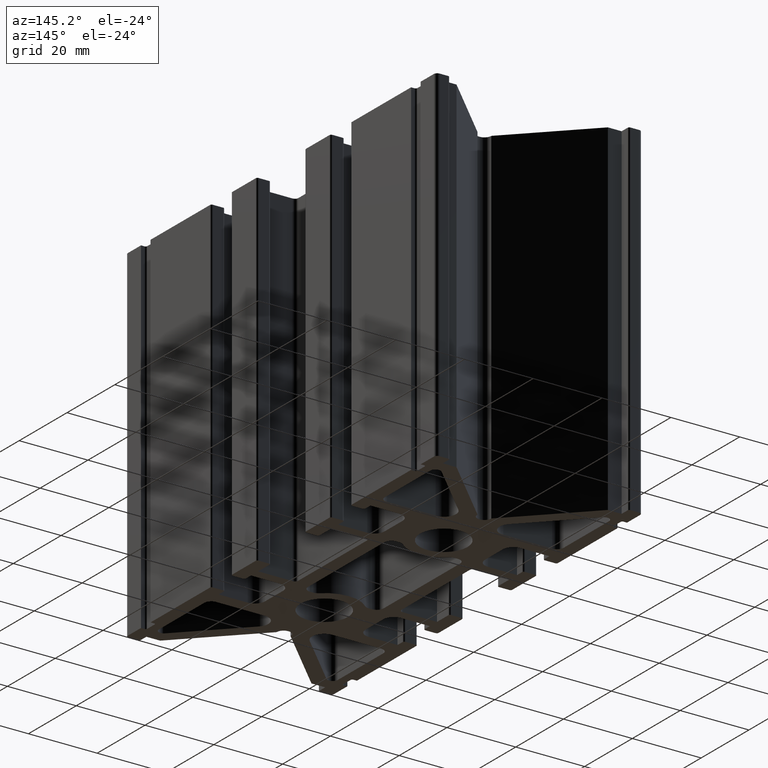
[diagram: clean part render]
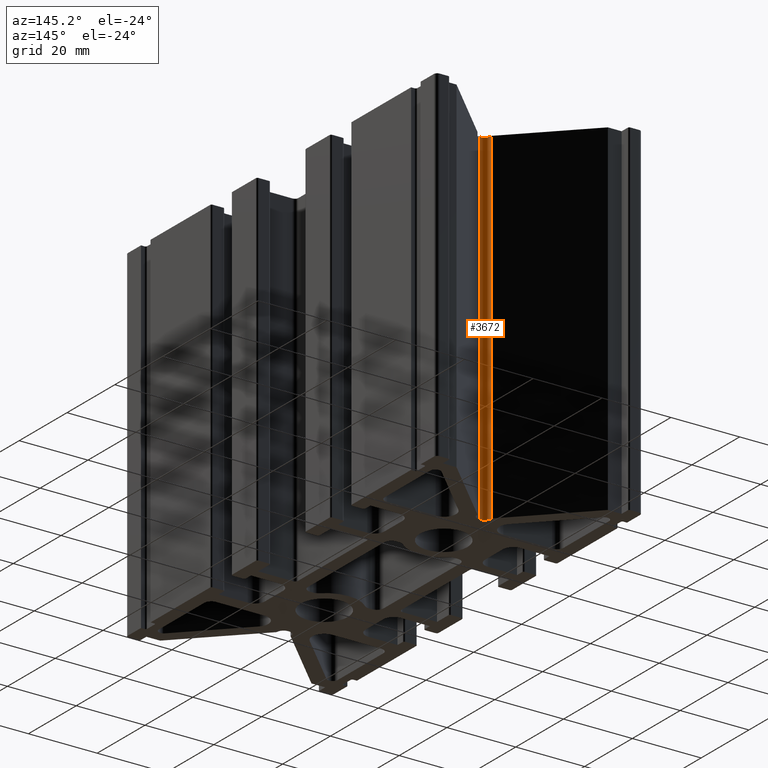
[diagram: same view with one face highlighted and labeled with its STEP entity id]
A machine part, auxiliary view. The second image highlights one B-rep face of the part: STEP entity #3672.
In plain terms, the highlighted cylindrical surface (edge-blend (fillet) strip) has radius 1.9 mm, axis along (0, 0, 1).
Its self-contained STEP definition (entity closure, byte-faithful):
#200=FACE_OUTER_BOUND('',#395,.T.);
#395=EDGE_LOOP('',(#2847,#2848,#2849,#2850));
#582=CIRCLE('',#3918,1.9);
#638=CIRCLE('',#3995,1.9);
#886=LINE('',#5887,#1284);
#887=LINE('',#5891,#1285);
#1284=VECTOR('',#4717,10.);
#1285=VECTOR('',#4722,10.);
#1588=VERTEX_POINT('',#5559);
#1589=VERTEX_POINT('',#5561);
#1731=VERTEX_POINT('',#5885);
#1732=VERTEX_POINT('',#5889);
#2002=EDGE_CURVE('',#1588,#1589,#582,.T.);
#2165=EDGE_CURVE('',#1588,#1731,#886,.T.);
#2166=EDGE_CURVE('',#1732,#1731,#638,.T.);
#2167=EDGE_CURVE('',#1589,#1732,#887,.T.);
#2847=ORIENTED_EDGE('',*,*,#2165,.T.);
#2848=ORIENTED_EDGE('',*,*,#2166,.F.);
#2849=ORIENTED_EDGE('',*,*,#2167,.F.);
#2850=ORIENTED_EDGE('',*,*,#2002,.F.);
#3560=CYLINDRICAL_SURFACE('',#3994,1.9);
#3672=ADVANCED_FACE('',(#200),#3560,.F.);
#3918=AXIS2_PLACEMENT_3D('',#5562,#4458,#4459);
#3994=AXIS2_PLACEMENT_3D('',#5888,#4718,#4719);
#3995=AXIS2_PLACEMENT_3D('',#5890,#4720,#4721);
#4458=DIRECTION('center_axis',(0.,0.,1.));
#4459=DIRECTION('ref_axis',(1.,0.,0.));
#4717=DIRECTION('',(0.,0.,1.));
#4718=DIRECTION('center_axis',(0.,0.,1.));
#4719=DIRECTION('ref_axis',(1.,0.,0.));
#4720=DIRECTION('center_axis',(0.,0.,-1.));
#4721=DIRECTION('ref_axis',(1.,0.,0.));
#4722=DIRECTION('',(0.,0.,1.));
#5559=CARTESIAN_POINT('',(-1.9999999999996,41.8999999999991,-50.));
#5561=CARTESIAN_POINT('',(-0.0999999999996248,39.9999999999991,-50.));
#5562=CARTESIAN_POINT('Origin',(-0.0999999999996248,41.8999999999991,-50.));
#5885=CARTESIAN_POINT('',(-1.9999999999996,41.8999999999991,50.));
#5887=CARTESIAN_POINT('',(-1.9999999999996,41.8999999999991,0.));
#5888=CARTESIAN_POINT('Origin',(-0.0999999999996248,41.8999999999991,0.));
#5889=CARTESIAN_POINT('',(-0.0999999999996248,39.9999999999991,50.));
#5890=CARTESIAN_POINT('Origin',(-0.0999999999996248,41.8999999999991,50.));
#5891=CARTESIAN_POINT('',(-0.0999999999996248,39.9999999999991,0.));